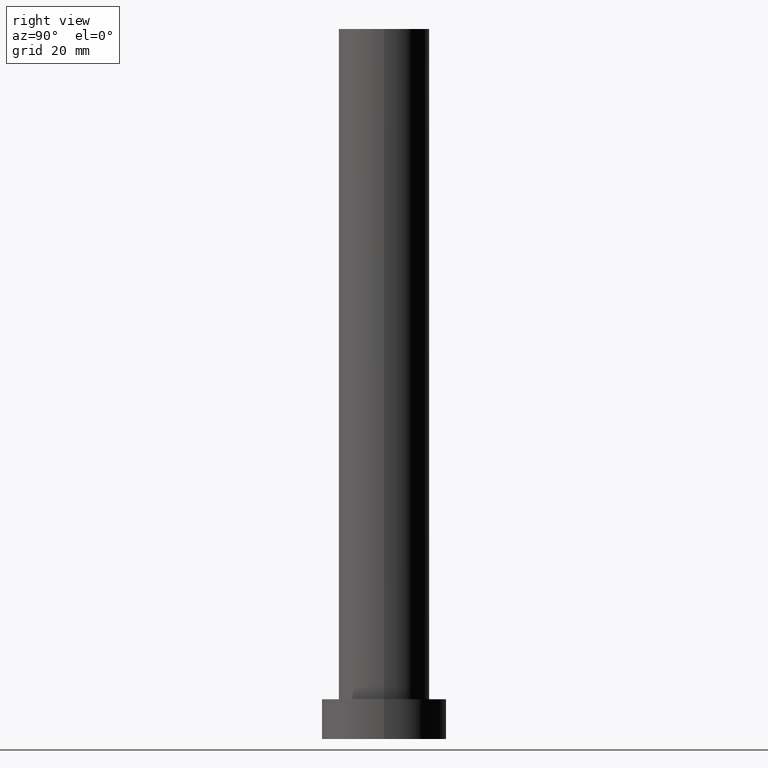
[diagram: clean part render]
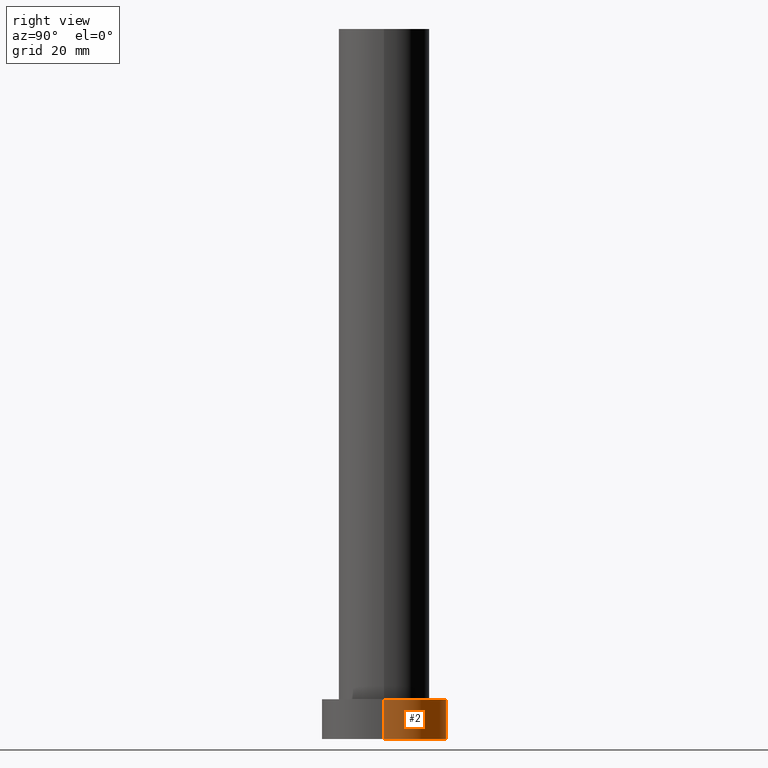
[diagram: same view with one face highlighted and labeled with its STEP entity id]
A machine part, right view. The second image highlights one B-rep face of the part: STEP entity #2.
In plain terms, the highlighted cylindrical surface (partial cylindrical patch) has radius 11 mm, axis along (-0, -0, -1).
Its self-contained STEP definition (entity closure, byte-faithful):
#2 = ADVANCED_FACE ( 'NONE', ( #35 ), #195, .T. ) ;
#10 = DIRECTION ( 'NONE',  ( -1.000000000000000000, 0.000000000000000000, 0.000000000000000000 ) ) ;
#35 = FACE_OUTER_BOUND ( 'NONE', #71, .T. ) ;
#36 = CARTESIAN_POINT ( 'NONE',  ( 0.000000000000000000, 0.000000000000000000, 7.000000000000000000 ) ) ;
#40 = CARTESIAN_POINT ( 'NONE',  ( -11.00000000000000000, 0.000000000000000000, 7.000000000000000000 ) ) ;
#55 = LINE ( 'NONE', #144, #154 ) ;
#59 = DIRECTION ( 'NONE',  ( 0.000000000000000000, 0.000000000000000000, 1.000000000000000000 ) ) ;
#71 = EDGE_LOOP ( 'NONE', ( #232, #95, #104, #91 ) ) ;
#78 = DIRECTION ( 'NONE',  ( -0.000000000000000000, -0.000000000000000000, -1.000000000000000000 ) ) ;
#87 = AXIS2_PLACEMENT_3D ( 'NONE', #160, #202, #10 ) ;
#88 = CIRCLE ( 'NONE', #94, 11.00000000000000000 ) ;
#91 = ORIENTED_EDGE ( 'NONE', *, *, #107, .F. ) ;
#94 = AXIS2_PLACEMENT_3D ( 'NONE', #170, #59, #223 ) ;
#95 = ORIENTED_EDGE ( 'NONE', *, *, #112, .T. ) ;
#102 = LINE ( 'NONE', #182, #247 ) ;
#104 = ORIENTED_EDGE ( 'NONE', *, *, #224, .T. ) ;
#106 = CARTESIAN_POINT ( 'NONE',  ( 11.00000000000000000, 1.347111479062088405E-15, 0.000000000000000000 ) ) ;
#107 = EDGE_CURVE ( 'NONE', #246, #162, #102, .T. ) ;
#112 = EDGE_CURVE ( 'NONE', #214, #250, #55, .T. ) ;
#118 = EDGE_CURVE ( 'NONE', #214, #246, #186, .T. ) ;
#144 = CARTESIAN_POINT ( 'NONE',  ( 11.00000000000000000, 1.347111479062088405E-15, 7.000000000000000000 ) ) ;
#146 = AXIS2_PLACEMENT_3D ( 'NONE', #36, #152, #221 ) ;
#152 = DIRECTION ( 'NONE',  ( 0.000000000000000000, 0.000000000000000000, 1.000000000000000000 ) ) ;
#154 = VECTOR ( 'NONE', #218, 1000.000000000000000 ) ;
#160 = CARTESIAN_POINT ( 'NONE',  ( 0.000000000000000000, 0.000000000000000000, 7.000000000000000000 ) ) ;
#162 = VERTEX_POINT ( 'NONE', #189 ) ;
#170 = CARTESIAN_POINT ( 'NONE',  ( 0.000000000000000000, 0.000000000000000000, 0.000000000000000000 ) ) ;
#182 = CARTESIAN_POINT ( 'NONE',  ( -11.00000000000000000, 0.000000000000000000, 7.000000000000000000 ) ) ;
#186 = CIRCLE ( 'NONE', #146, 11.00000000000000000 ) ;
#189 = CARTESIAN_POINT ( 'NONE',  ( -11.00000000000000000, 0.000000000000000000, 0.000000000000000000 ) ) ;
#195 = CYLINDRICAL_SURFACE ( 'NONE', #87, 11.00000000000000000 ) ;
#202 = DIRECTION ( 'NONE',  ( -0.000000000000000000, -0.000000000000000000, -1.000000000000000000 ) ) ;
#214 = VERTEX_POINT ( 'NONE', #241 ) ;
#218 = DIRECTION ( 'NONE',  ( -0.000000000000000000, -0.000000000000000000, -1.000000000000000000 ) ) ;
#221 = DIRECTION ( 'NONE',  ( 1.000000000000000000, 0.000000000000000000, 0.000000000000000000 ) ) ;
#223 = DIRECTION ( 'NONE',  ( 1.000000000000000000, 0.000000000000000000, 0.000000000000000000 ) ) ;
#224 = EDGE_CURVE ( 'NONE', #250, #162, #88, .T. ) ;
#232 = ORIENTED_EDGE ( 'NONE', *, *, #118, .F. ) ;
#241 = CARTESIAN_POINT ( 'NONE',  ( 11.00000000000000000, 1.347111479062088405E-15, 7.000000000000000000 ) ) ;
#246 = VERTEX_POINT ( 'NONE', #40 ) ;
#247 = VECTOR ( 'NONE', #78, 1000.000000000000000 ) ;
#250 = VERTEX_POINT ( 'NONE', #106 ) ;